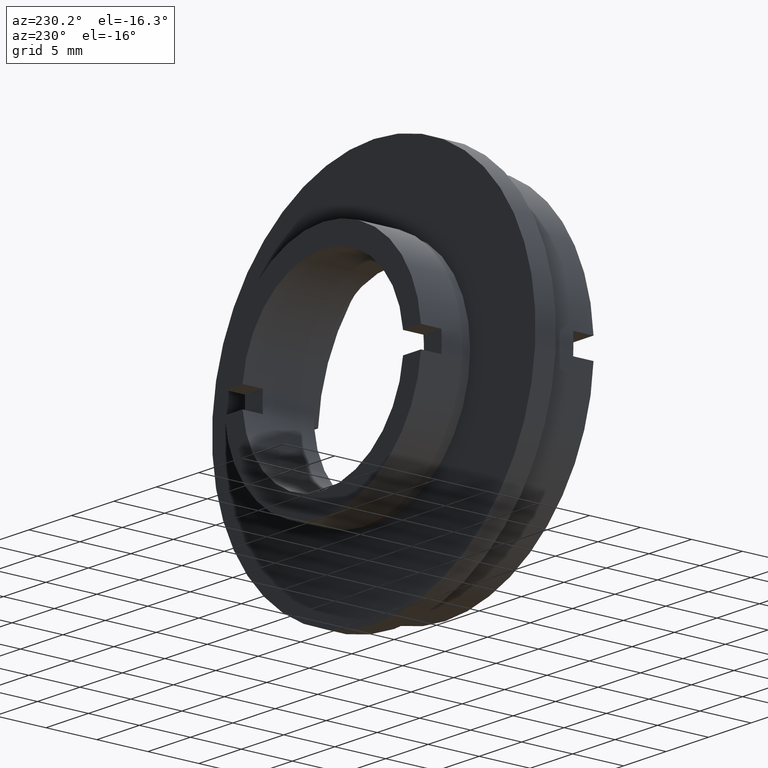
[diagram: clean part render]
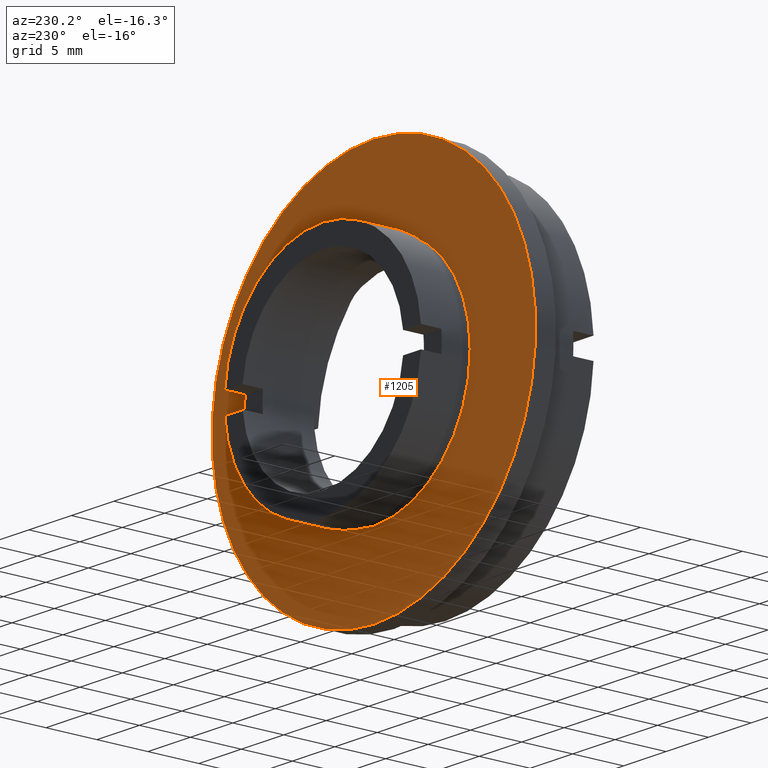
[diagram: same view with one face highlighted and labeled with its STEP entity id]
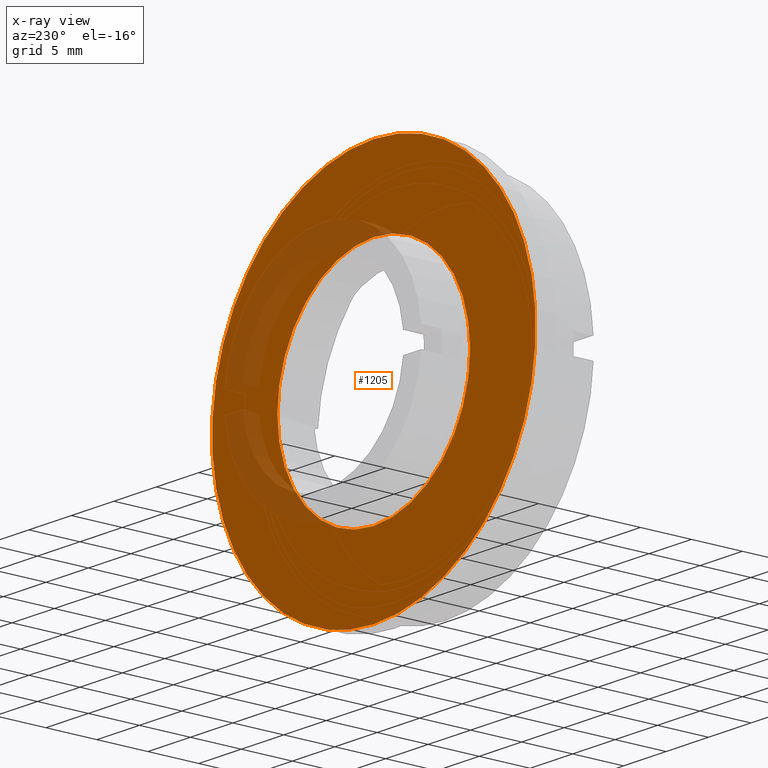
[diagram: x-ray of the same camera — body ghosted, the highlighted face saturated]
A machine part, auxiliary view. The second image highlights one B-rep face of the part: STEP entity #1205.
The next image is the same camera in x-ray: the body ghosted, the highlighted face saturated — about 15% of this face is hidden behind the body in this view.
In plain terms, the highlighted planar face has unit normal (-0, 1, 0).
Its self-contained STEP definition (entity closure, byte-faithful):
#12 = AXIS2_PLACEMENT_3D ( 'NONE', #147, #719, #54 ) ;
#15 = VERTEX_POINT ( 'NONE', #767 ) ;
#53 = ORIENTED_EDGE ( 'NONE', *, *, #59, .F. ) ;
#54 = DIRECTION ( 'NONE',  ( 0.0000000000000000000, 0.0000000000000000000, 1.000000000000000000 ) ) ;
#59 = EDGE_CURVE ( 'NONE', #1155, #15, #263, .T. ) ;
#65 = PLANE ( 'NONE',  #100 ) ;
#99 = FACE_BOUND ( 'NONE', #618, .T. ) ;
#100 = AXIS2_PLACEMENT_3D ( 'NONE', #1295, #1292, #101 ) ;
#101 = DIRECTION ( 'NONE',  ( 0.0000000000000000000, 0.0000000000000000000, 1.000000000000000000 ) ) ;
#103 = CIRCLE ( 'NONE', #12, 11.34999999999999600 ) ;
#147 = CARTESIAN_POINT ( 'NONE',  ( 0.0000000000000000000, 6.999999999999999100, 0.0000000000000000000 ) ) ;
#237 = ORIENTED_EDGE ( 'NONE', *, *, #815, .T. ) ;
#263 = CIRCLE ( 'NONE', #330, 11.34999999999999600 ) ;
#286 = DIRECTION ( 'NONE',  ( 0.0000000000000000000, 0.0000000000000000000, 1.000000000000000000 ) ) ;
#330 = AXIS2_PLACEMENT_3D ( 'NONE', #1093, #1207, #286 ) ;
#332 = DIRECTION ( 'NONE',  ( 0.0000000000000000000, 0.0000000000000000000, 1.000000000000000000 ) ) ;
#414 = AXIS2_PLACEMENT_3D ( 'NONE', #878, #786, #332 ) ;
#427 = EDGE_CURVE ( 'NONE', #15, #1155, #103, .T. ) ;
#564 = CIRCLE ( 'NONE', #1186, 19.04999999999999700 ) ;
#618 = EDGE_LOOP ( 'NONE', ( #53, #1035 ) ) ;
#692 = CIRCLE ( 'NONE', #414, 19.04999999999999700 ) ;
#699 = VERTEX_POINT ( 'NONE', #1336 ) ;
#719 = DIRECTION ( 'NONE',  ( -0.0000000000000000000, 1.000000000000000000, -0.0000000000000000000 ) ) ;
#737 = FACE_OUTER_BOUND ( 'NONE', #882, .T. ) ;
#738 = EDGE_CURVE ( 'NONE', #1171, #699, #564, .T. ) ;
#767 = CARTESIAN_POINT ( 'NONE',  ( 1.389974117032245400E-015, 6.999999999999999100, -11.34999999999999600 ) ) ;
#780 = CARTESIAN_POINT ( 'NONE',  ( 0.0000000000000000000, 7.000000000000002700, 0.0000000000000000000 ) ) ;
#786 = DIRECTION ( 'NONE',  ( -0.0000000000000000000, 1.000000000000000000, -0.0000000000000000000 ) ) ;
#815 = EDGE_CURVE ( 'NONE', #699, #1171, #692, .T. ) ;
#823 = DIRECTION ( 'NONE',  ( 0.0000000000000000000, 0.0000000000000000000, 1.000000000000000000 ) ) ;
#870 = DIRECTION ( 'NONE',  ( -0.0000000000000000000, 1.000000000000000000, -0.0000000000000000000 ) ) ;
#878 = CARTESIAN_POINT ( 'NONE',  ( 0.0000000000000000000, 7.000000000000002700, 0.0000000000000000000 ) ) ;
#882 = EDGE_LOOP ( 'NONE', ( #237, #932 ) ) ;
#932 = ORIENTED_EDGE ( 'NONE', *, *, #738, .T. ) ;
#1035 = ORIENTED_EDGE ( 'NONE', *, *, #427, .F. ) ;
#1093 = CARTESIAN_POINT ( 'NONE',  ( 0.0000000000000000000, 6.999999999999999100, 0.0000000000000000000 ) ) ;
#1155 = VERTEX_POINT ( 'NONE', #1271 ) ;
#1171 = VERTEX_POINT ( 'NONE', #1264 ) ;
#1186 = AXIS2_PLACEMENT_3D ( 'NONE', #780, #870, #823 ) ;
#1205 = ADVANCED_FACE ( 'NONE', ( #737, #99 ), #65, .T. ) ;
#1207 = DIRECTION ( 'NONE',  ( -0.0000000000000000000, 1.000000000000000000, -0.0000000000000000000 ) ) ;
#1264 = CARTESIAN_POINT ( 'NONE',  ( 2.332952152375707300E-015, 7.000000000000002700, -19.04999999999999700 ) ) ;
#1271 = CARTESIAN_POINT ( 'NONE',  ( 0.0000000000000000000, 6.999999999999999100, 11.34999999999999600 ) ) ;
#1292 = DIRECTION ( 'NONE',  ( -0.0000000000000000000, 1.000000000000000000, 0.0000000000000000000 ) ) ;
#1295 = CARTESIAN_POINT ( 'NONE',  ( -11.34999999999999600, 7.000000000000000900, 0.0000000000000000000 ) ) ;
#1336 = CARTESIAN_POINT ( 'NONE',  ( 0.0000000000000000000, 7.000000000000002700, 19.04999999999999700 ) ) ;